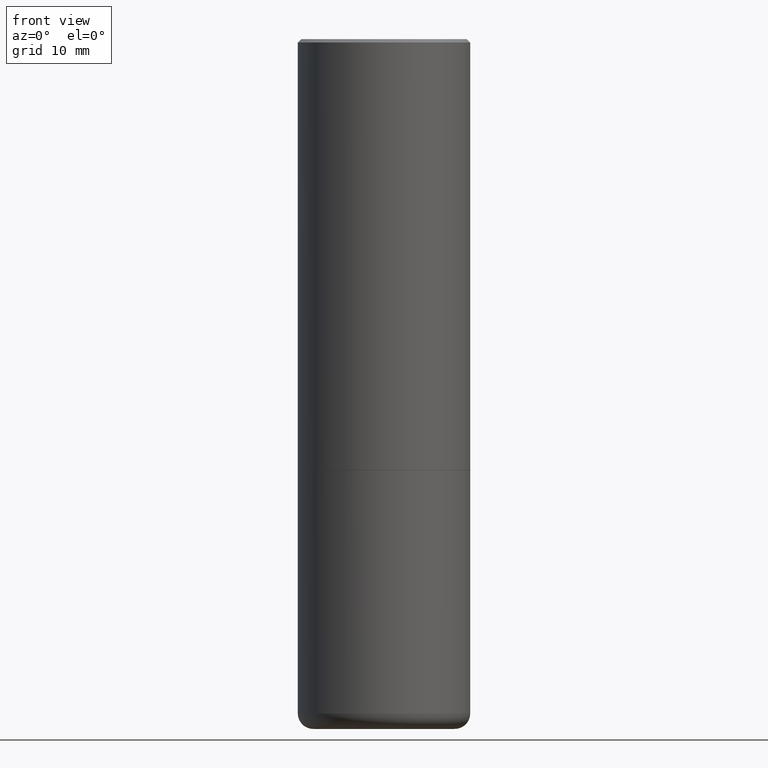
[diagram: clean part render]
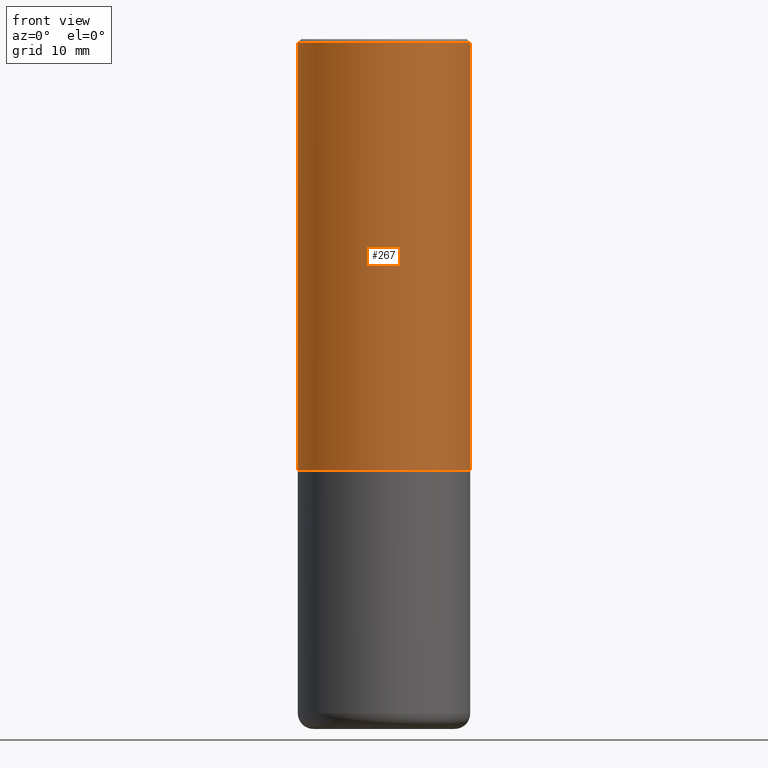
[diagram: same view with one face highlighted and labeled with its STEP entity id]
A machine part, front view. The second image highlights one B-rep face of the part: STEP entity #267.
In plain terms, the highlighted cylindrical surface (partial cylindrical patch) has radius 12.7 mm, axis along (-0, 0, 1).
Its self-contained STEP definition (entity closure, byte-faithful):
#20 = DIRECTION ( 'NONE',  ( 1.000000000000000000, -6.982962677686267499E-15, 4.876176775795936353E-29 ) ) ;
#39 = DIRECTION ( 'NONE',  ( 1.000000000000000000, -6.982962677686265133E-15, 0.000000000000000000 ) ) ;
#46 = LINE ( 'NONE', #316, #134 ) ;
#50 = ORIENTED_EDGE ( 'NONE', *, *, #128, .F. ) ;
#54 = DIRECTION ( 'NONE',  ( -2.445468806185136877E-29, 3.491481338843145188E-15, 1.000000000000000000 ) ) ;
#72 = CARTESIAN_POINT ( 'NONE',  ( 0.5000000000000000000, -1.221669320461215371E-14, -2.499000000000000110 ) ) ;
#125 = VECTOR ( 'NONE', #328, 39.37007874015748143 ) ;
#128 = EDGE_CURVE ( 'NONE', #314, #155, #279, .T. ) ;
#134 = VECTOR ( 'NONE', #54, 39.37007874015748143 ) ;
#155 = VERTEX_POINT ( 'NONE', #346 ) ;
#156 = CARTESIAN_POINT ( 'NONE',  ( 4.890937612370278413E-31, -6.982962677686297772E-17, -0.02000000000000002123 ) ) ;
#157 = ORIENTED_EDGE ( 'NONE', *, *, #359, .T. ) ;
#169 = CARTESIAN_POINT ( 'NONE',  ( -0.5000000000000000000, -8.448070674724403070E-16, -2.499000000000000110 ) ) ;
#183 = CARTESIAN_POINT ( 'NONE',  ( -0.4999999999999998335, 3.552713678800499746E-15, -2.459467545127452330E-29 ) ) ;
#188 = FACE_OUTER_BOUND ( 'NONE', #329, .T. ) ;
#190 = DIRECTION ( 'NONE',  ( -2.445468806185136597E-29, 3.491481338843145583E-15, 1.000000000000000000 ) ) ;
#208 = CIRCLE ( 'NONE', #397, 0.5000000000000000000 ) ;
#218 = DIRECTION ( 'NONE',  ( -2.445468806185136597E-29, 3.491481338843145583E-15, 1.000000000000000000 ) ) ;
#241 = ORIENTED_EDGE ( 'NONE', *, *, #331, .T. ) ;
#247 = CARTESIAN_POINT ( 'NONE',  ( 6.111226546656657010E-29, -8.725211865769021935E-15, -2.499000000000000110 ) ) ;
#250 = ORIENTED_EDGE ( 'NONE', *, *, #299, .F. ) ;
#267 = ADVANCED_FACE ( 'NONE', ( #188 ), #425, .T. ) ;
#279 = LINE ( 'NONE', #183, #125 ) ;
#299 = EDGE_CURVE ( 'NONE', #155, #433, #436, .T. ) ;
#300 = AXIS2_PLACEMENT_3D ( 'NONE', #393, #190, #20 ) ;
#314 = VERTEX_POINT ( 'NONE', #169 ) ;
#316 = CARTESIAN_POINT ( 'NONE',  ( 0.4999999999999998335, -3.491481338843132566E-15, 2.438088387897967336E-29 ) ) ;
#327 = DIRECTION ( 'NONE',  ( 1.000000000000000000, -6.982962677686266711E-15, 0.000000000000000000 ) ) ;
#328 = DIRECTION ( 'NONE',  ( -2.445468806185136877E-29, 3.491481338843145188E-15, 1.000000000000000000 ) ) ;
#329 = EDGE_LOOP ( 'NONE', ( #50, #241, #157, #250 ) ) ;
#331 = EDGE_CURVE ( 'NONE', #314, #343, #208, .T. ) ;
#334 = AXIS2_PLACEMENT_3D ( 'NONE', #156, #218, #327 ) ;
#343 = VERTEX_POINT ( 'NONE', #72 ) ;
#346 = CARTESIAN_POINT ( 'NONE',  ( -0.4999999999999996669, 3.421651712066268085E-15, -0.02000000000000002123 ) ) ;
#359 = EDGE_CURVE ( 'NONE', #343, #433, #46, .T. ) ;
#367 = DIRECTION ( 'NONE',  ( -2.445468806185136597E-29, 3.491481338843145583E-15, 1.000000000000000000 ) ) ;
#393 = CARTESIAN_POINT ( 'NONE',  ( 0.000000000000000000, 0.000000000000000000, 0.000000000000000000 ) ) ;
#397 = AXIS2_PLACEMENT_3D ( 'NONE', #247, #367, #39 ) ;
#409 = CARTESIAN_POINT ( 'NONE',  ( 0.4999999999999996669, -3.500078625662626318E-15, -0.02000000000000002123 ) ) ;
#425 = CYLINDRICAL_SURFACE ( 'NONE', #300, 0.4999999999999998335 ) ;
#433 = VERTEX_POINT ( 'NONE', #409 ) ;
#436 = CIRCLE ( 'NONE', #334, 0.4999999999999996669 ) ;